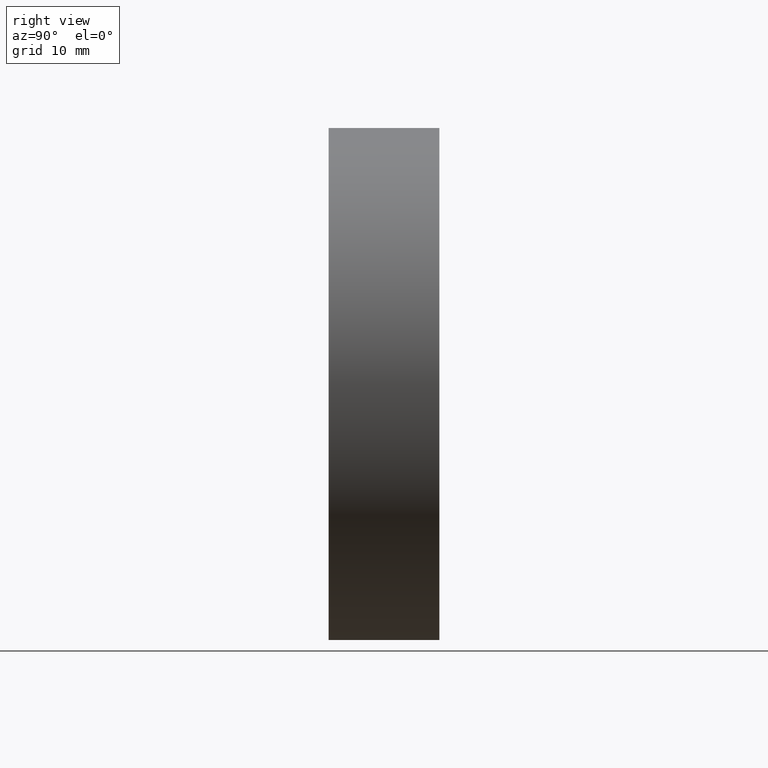
[diagram: clean part render]
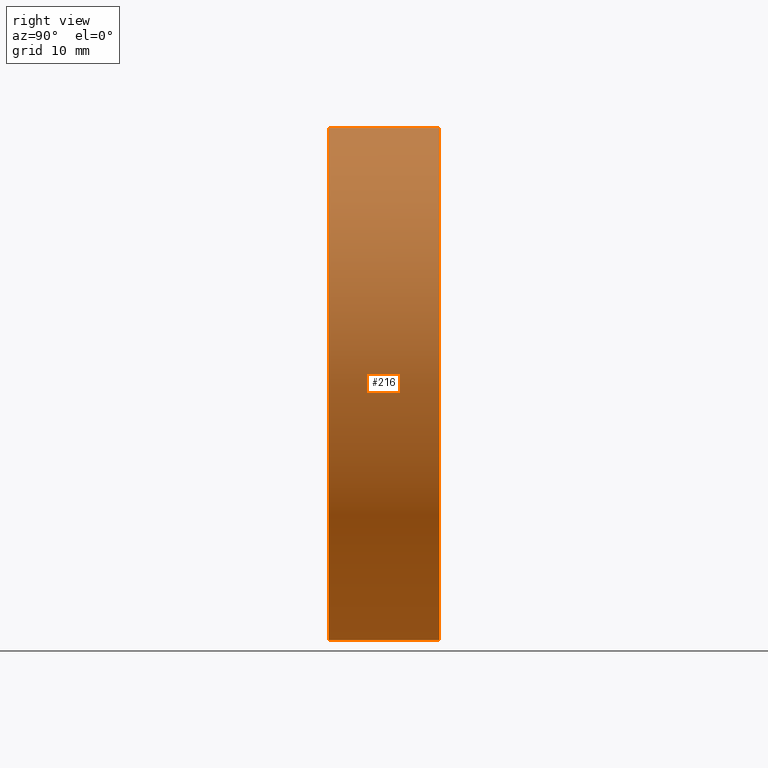
[diagram: same view with one face highlighted and labeled with its STEP entity id]
A machine part, right view. The second image highlights one B-rep face of the part: STEP entity #216.
In plain terms, the highlighted cylindrical surface (partial cylindrical patch) has radius 25.4 mm, axis along (-0, -1, -0).
Its self-contained STEP definition (entity closure, byte-faithful):
#1 = AXIS2_PLACEMENT_3D ( 'NONE', #43, #175, #105 ) ;
#3 = ORIENTED_EDGE ( 'NONE', *, *, #157, .T. ) ;
#8 = AXIS2_PLACEMENT_3D ( 'NONE', #194, #132, #152 ) ;
#18 = ORIENTED_EDGE ( 'NONE', *, *, #213, .F. ) ;
#21 = EDGE_CURVE ( 'NONE', #144, #159, #173, .T. ) ;
#29 = CARTESIAN_POINT ( 'NONE',  ( 3.110602869834276900E-015, 11.00000000000000000, 25.39999999999999900 ) ) ;
#43 = CARTESIAN_POINT ( 'NONE',  ( 0.0000000000000000000, 11.00000000000000000, 0.0000000000000000000 ) ) ;
#50 = DIRECTION ( 'NONE',  ( 0.0000000000000000000, 0.0000000000000000000, 1.000000000000000000 ) ) ;
#63 = LINE ( 'NONE', #29, #82 ) ;
#68 = EDGE_CURVE ( 'NONE', #168, #192, #63, .T. ) ;
#82 = VECTOR ( 'NONE', #196, 1000.000000000000000 ) ;
#83 = EDGE_LOOP ( 'NONE', ( #18, #138, #3, #95 ) ) ;
#84 = DIRECTION ( 'NONE',  ( -0.0000000000000000000, -1.000000000000000000, -0.0000000000000000000 ) ) ;
#90 = CARTESIAN_POINT ( 'NONE',  ( 3.110602869834276900E-015, 11.00000000000000000, 25.39999999999999900 ) ) ;
#95 = ORIENTED_EDGE ( 'NONE', *, *, #21, .F. ) ;
#105 = DIRECTION ( 'NONE',  ( 0.0000000000000000000, 0.0000000000000000000, 1.000000000000000000 ) ) ;
#106 = FACE_OUTER_BOUND ( 'NONE', #83, .T. ) ;
#107 = CARTESIAN_POINT ( 'NONE',  ( 0.0000000000000000000, 11.00000000000000000, -25.39999999999999900 ) ) ;
#117 = CARTESIAN_POINT ( 'NONE',  ( 0.0000000000000000000, 0.0000000000000000000, -25.39999999999999900 ) ) ;
#122 = CIRCLE ( 'NONE', #1, 25.39999999999999900 ) ;
#132 = DIRECTION ( 'NONE',  ( -0.0000000000000000000, -1.000000000000000000, -0.0000000000000000000 ) ) ;
#138 = ORIENTED_EDGE ( 'NONE', *, *, #68, .T. ) ;
#144 = VERTEX_POINT ( 'NONE', #208 ) ;
#152 = DIRECTION ( 'NONE',  ( 0.0000000000000000000, 0.0000000000000000000, -1.000000000000000000 ) ) ;
#157 = EDGE_CURVE ( 'NONE', #192, #159, #171, .T. ) ;
#159 = VERTEX_POINT ( 'NONE', #117 ) ;
#168 = VERTEX_POINT ( 'NONE', #90 ) ;
#171 = CIRCLE ( 'NONE', #191, 25.39999999999999900 ) ;
#173 = LINE ( 'NONE', #107, #240 ) ;
#175 = DIRECTION ( 'NONE',  ( 0.0000000000000000000, 1.000000000000000000, 0.0000000000000000000 ) ) ;
#184 = CARTESIAN_POINT ( 'NONE',  ( 3.110602869834276900E-015, 0.0000000000000000000, 25.39999999999999900 ) ) ;
#191 = AXIS2_PLACEMENT_3D ( 'NONE', #203, #210, #50 ) ;
#192 = VERTEX_POINT ( 'NONE', #184 ) ;
#194 = CARTESIAN_POINT ( 'NONE',  ( 0.0000000000000000000, 11.00000000000000000, 0.0000000000000000000 ) ) ;
#196 = DIRECTION ( 'NONE',  ( -0.0000000000000000000, -1.000000000000000000, -0.0000000000000000000 ) ) ;
#203 = CARTESIAN_POINT ( 'NONE',  ( 0.0000000000000000000, 0.0000000000000000000, 0.0000000000000000000 ) ) ;
#208 = CARTESIAN_POINT ( 'NONE',  ( 0.0000000000000000000, 11.00000000000000000, -25.39999999999999900 ) ) ;
#210 = DIRECTION ( 'NONE',  ( 0.0000000000000000000, 1.000000000000000000, 0.0000000000000000000 ) ) ;
#213 = EDGE_CURVE ( 'NONE', #168, #144, #122, .T. ) ;
#216 = ADVANCED_FACE ( 'NONE', ( #106 ), #235, .T. ) ;
#235 = CYLINDRICAL_SURFACE ( 'NONE', #8, 25.39999999999999900 ) ;
#240 = VECTOR ( 'NONE', #84, 1000.000000000000000 ) ;